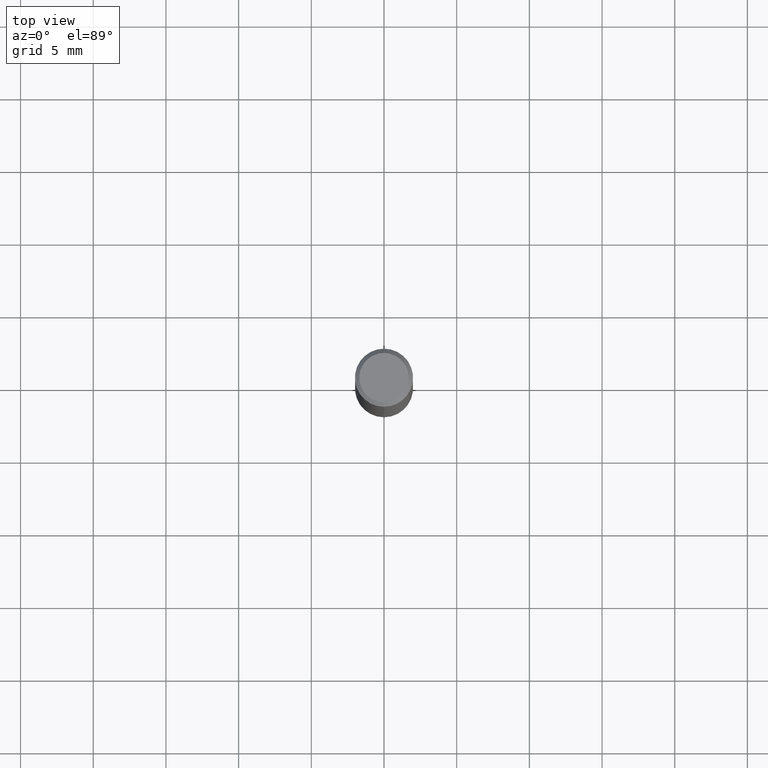
[diagram: clean part render]
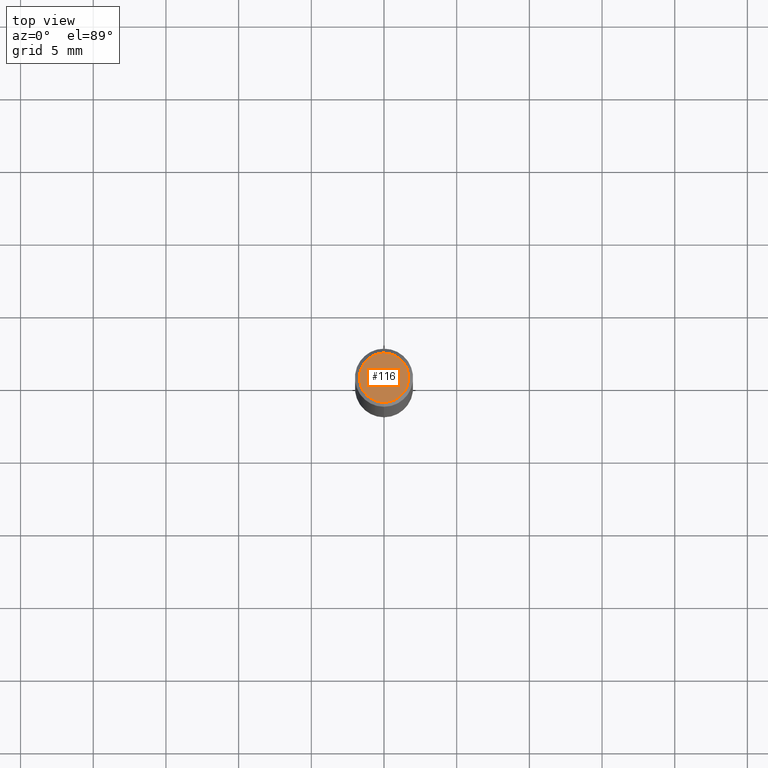
[diagram: same view with one face highlighted and labeled with its STEP entity id]
A machine part, top view. The second image highlights one B-rep face of the part: STEP entity #116.
In plain terms, the highlighted planar face has unit normal (-0, 0, 1).
Its self-contained STEP definition (entity closure, byte-faithful):
#88=VERTEX_POINT('',#209);
#100=EDGE_CURVE('',#88,#130,#224,.T.);
#116=ADVANCED_FACE('',(#242),#243,.T.);
#130=VERTEX_POINT('',#257);
#132=EDGE_CURVE('',#130,#88,#259,.T.);
#209=CARTESIAN_POINT('',(2.08183080149804E-016,-1.7,0.0));
#224=CIRCLE('',#355,1.7);
#242=FACE_OUTER_BOUND('',#376,.T.);
#243=PLANE('',#377);
#257=CARTESIAN_POINT('',(0.0,1.7,0.0));
#259=CIRCLE('',#396,1.7);
#355=AXIS2_PLACEMENT_3D('',#504,#505,#506);
#376=EDGE_LOOP('',(#526,#527));
#377=AXIS2_PLACEMENT_3D('',#528,#529,#530);
#396=AXIS2_PLACEMENT_3D('',#536,#537,#538);
#504=CARTESIAN_POINT('',(0.0,0.0,0.0));
#505=DIRECTION('',(0.0,0.0,-1.0));
#506=DIRECTION('',(0.0,1.0,0.0));
#526=ORIENTED_EDGE('',*,*,#132,.F.);
#527=ORIENTED_EDGE('',*,*,#100,.F.);
#528=CARTESIAN_POINT('',(0.0,0.85,0.0));
#529=DIRECTION('',(-0.0,0.0,1.0));
#530=DIRECTION('',(0.0,-1.0,0.0));
#536=CARTESIAN_POINT('',(0.0,0.0,0.0));
#537=DIRECTION('',(0.0,0.0,-1.0));
#538=DIRECTION('',(0.0,1.0,0.0));